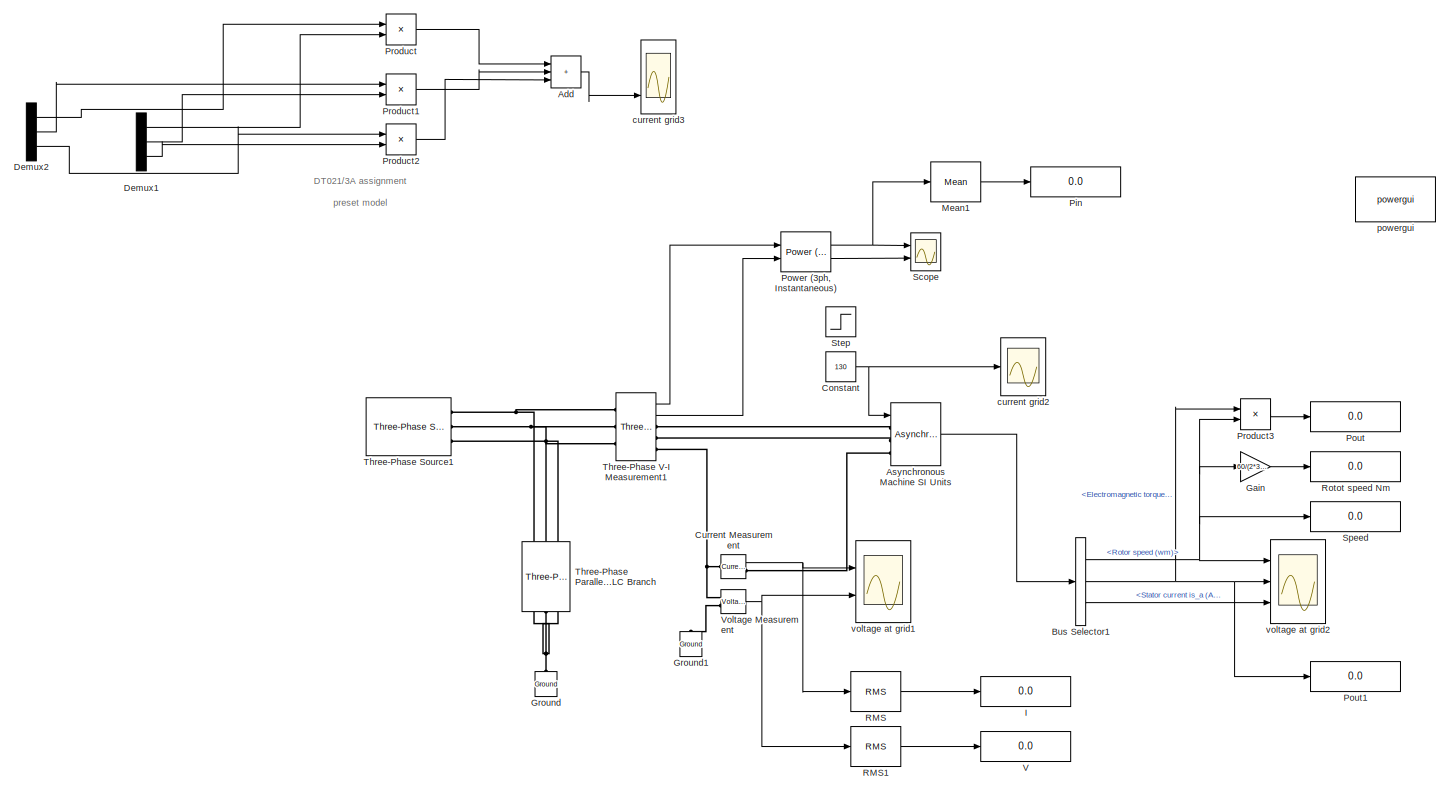
[diagram: root canvas - part 1/1, most of the canvas]
MODEL slx_60de3f6dcb60
KIND model
CONFIG AbsTol = auto
CONFIG EnableMultiTasking = on
CONFIG FixedStep = auto
CONFIG MaxStep = .001
CONFIG MinStep = auto
CONFIG RelTol = 1e-3
CONFIG SampleTimeConstraint = Unconstrained
CONFIG SolverName = ode23tb
CONFIG StartTime = 0
CONFIG StopTime = .8
BLOCK [Scope]  current grid2
  Floating = off
  NumInputPorts = 1
  Ports = [1]
  ScopeSpecificationString = Simulink.scopes.TimeScopeBlockCfg('CurrentConfiguration', extmgr.ConfigurationSet(extmgr.Configuration('Core','General UI',true),extmgr.Configuration('Core','Source UI',true),extmgr.Configuration('Sources','WiredSimulink',true,'DataLoggingVariableName','ScopeData2','DataLoggingSaveFormat','StructureWithTime','DataLoggingDecimation','1','DataLoggingDecimateData',true),extmgr.Configuration('Visuals'...<+1623ch>
BLOCK [Scope]  current grid3
  Floating = off
  NumInputPorts = 3
  Ports = [3]
  ScopeSpecificationString = Simulink.scopes.TimeScopeBlockCfg('CurrentConfiguration', extmgr.ConfigurationSet(extmgr.Configuration('Core','General UI',true),extmgr.Configuration('Core','Source UI',true),extmgr.Configuration('Sources','WiredSimulink',true,'DataLoggingVariableName','ScopeData1','DataLoggingSaveFormat','StructureWithTime','DataLoggingDecimation','1','DataLoggingDecimateData',true),extmgr.Configuration('Visuals'...<+3138ch>
BLOCK [Sum] Add
  IconShape = rectangular
  Inputs = +++
  Ports = [3, 1]
BLOCK [Reference] Asynchronous Machine SI Units  REF=powerlib/Machines/Asynchronous Machine
SI Units
  Ports = [1, 1, 0, 0, 0, 3]
  SourceBlock = powerlib/Machines/Asynchronous Machine\nSI Units
  SourceProductBaseCode = PS
  SourceType = Asynchronous Machine
BLOCK [BusSelector] Bus Selector1
  OutputSignals = Mechanical.Rotor speed (wm),Mechanical.Electromagnetic torque Te (N*m),Stator measurements.Stator current is_a (A)
  Ports = [1, 3]
BLOCK [Constant] Constant
  Value = 130
BLOCK [Reference] Current Measurement  REF=powerlib/Measurements/Current Measurement
  Ports = [0, 1, 0, 0, 0, 1, 1]
  SourceBlock = powerlib/Measurements/Current Measurement
  SourceProductBaseCode = PS
  SourceType = Current Measurement
  UserDataPersistent = on
BLOCK [Demux] Demux1
  Outputs = 3
  Ports = [1, 3]
BLOCK [Demux] Demux2
  Outputs = 3
  Ports = [1, 3]
BLOCK [Gain] Gain
  Gain = 60/(2*3.14159)
BLOCK [Reference] Ground  REF=powerlib/Elements/Ground
  NameLocation = right
  Ports = [0, 0, 0, 0, 0, 1]
  SourceBlock = powerlib/Elements/Ground
  SourceProductBaseCode = PS
  SourceType = Ground
BLOCK [Reference] Ground1  REF=powerlib/Elements/Ground
  NameLocation = right
  Ports = [0, 0, 0, 0, 0, 1]
  SourceBlock = powerlib/Elements/Ground
  SourceProductBaseCode = PS
  SourceType = Ground
BLOCK [Display] I
  Decimation = 1
  Ports = [1]
BLOCK [Reference] Mean1  REF=powerlib_meascontrol/Measurements/Mean
  Ports = [1, 1]
  SourceBlock = powerlib_meascontrol/Measurements/Mean
  SourceProductBaseCode = PS
  SourceType = Mean
BLOCK [Display] Pin
  Decimation = 1
  Ports = [1]
BLOCK [Display] Pout
  Decimation = 1
  Ports = [1]
BLOCK [Display] Pout1
  Decimation = 1
  Ports = [1]
BLOCK [Reference] Power (3ph, Instantaneous)  REF=powerlib_meascontrol/Measurements/Power
(3ph, Instantaneous)
  Ports = [2, 2]
  SourceBlock = powerlib_meascontrol/Measurements/Power\n(3ph, Instantaneous)
  SourceProductBaseCode = PS
  SourceType = Power (3ph, Instantaneous)
BLOCK [Product] Product
  Ports = [2, 1]
BLOCK [Product] Product1
  Ports = [2, 1]
BLOCK [Product] Product2
  Ports = [2, 1]
BLOCK [Product] Product3
  Ports = [2, 1]
BLOCK [Reference] RMS  REF=powerlib_meascontrol/Measurements/RMS
  Ports = [1, 1]
  SourceBlock = powerlib_meascontrol/Measurements/RMS
  SourceProductBaseCode = PS
  SourceType = RMS
BLOCK [Reference] RMS1  REF=powerlib_meascontrol/Measurements/RMS
  Ports = [1, 1]
  SourceBlock = powerlib_meascontrol/Measurements/RMS
  SourceProductBaseCode = PS
  SourceType = RMS
BLOCK [Display] Rotot speed Nm
  Decimation = 1
  Ports = [1]
BLOCK [Scope] Scope
  Floating = off
  NumInputPorts = 2
  Ports = [2]
  ScopeSpecificationString = Simulink.scopes.TimeScopeBlockCfg('CurrentConfiguration', extmgr.ConfigurationSet(extmgr.Configuration('Core','General UI',true),extmgr.Configuration('Core','Source UI',true),extmgr.Configuration('Sources','WiredSimulink',true,'DataLoggingVariableName','ScopeData1'),extmgr.Configuration('Visuals','Time Domain',true,'SerializedDisplays',{struct('MinYLimReal','-1066164.58295','MaxYLimReal','2785580....<+1460ch>
BLOCK [Display] Speed
  Decimation = 1
  Ports = [1]
BLOCK [Step] Step
  After = 25
  Before = 7
  SampleTime = 0
  Time = .3
BLOCK [Reference] Three-Phase Parallel RLC Branch  REF=powerlib/Elements/Three-Phase
Parallel RLC Branch
  AttributesFormatString = \n
  NameLocation = left
  Ports = [0, 0, 0, 0, 0, 3, 3]
  SourceBlock = powerlib/Elements/Three-Phase\nParallel RLC Branch
  SourceProductBaseCode = PS
  SourceType = Three-Phase Parallel RLC Branch
BLOCK [Reference] Three-Phase Source1  REF=powerlib/Electrical
Sources/Three-Phase Source
  Ports = [0, 0, 0, 0, 0, 0, 3]
  SourceBlock = powerlib/Electrical\nSources/Three-Phase Source
  SourceProductBaseCode = PS
  SourceType = Three-Phase Source
BLOCK [Reference] Three-Phase V-I Measurement1  REF=powerlib/Measurements/Three-Phase
V-I Measurement
  Ports = [0, 2, 0, 0, 0, 3, 3]
  SourceBlock = powerlib/Measurements/Three-Phase\nV-I Measurement
  SourceProductBaseCode = PS
  SourceType = Three-Phase VI Measurement
BLOCK [Display] V
  Decimation = 1
  Ports = [1]
BLOCK [Reference] Voltage Measurement  REF=powerlib/Measurements/Voltage Measurement
  Ports = [0, 1, 0, 0, 0, 2]
  SourceBlock = powerlib/Measurements/Voltage Measurement
  SourceProductBaseCode = PS
  SourceType = Voltage Measurement
  UserDataPersistent = on
BLOCK [Reference] powergui  REF=powerlib/powergui
  Ports = []
  Priority = 2
  SourceBlock = powerlib/powergui
  SourceProductBaseCode = PS
  SourceType = PSB option menu block
BLOCK [Scope] voltage at grid1
  Floating = off
  NumInputPorts = 2
  Ports = [2]
  ScopeSpecificationString = Simulink.scopes.TimeScopeBlockCfg('CurrentConfiguration', extmgr.ConfigurationSet(extmgr.Configuration('Core','General UI',true,'FigureColor',[0.729411764705882 0.831372549019608 0.956862745098039]),extmgr.Configuration('Core','Source UI',true),extmgr.Configuration('Sources','WiredSimulink',true,'DataLoggingVariableName','ScopeData3','DataLoggingSaveFormat','StructureWithTime','DataLoggingDecimati...<+2657ch>
BLOCK [Scope] voltage at grid2
  Floating = off
  NumInputPorts = 3
  Ports = [3]
  ScopeSpecificationString = Simulink.scopes.TimeScopeBlockCfg('CurrentConfiguration', extmgr.ConfigurationSet(extmgr.Configuration('Core','General UI',true,'FigureColor',[0.729411764705882 0.831372549019608 0.956862745098039]),extmgr.Configuration('Core','Source UI',true),extmgr.Configuration('Sources','WiredSimulink',true,'DataLoggingVariableName','ScopeData1','DataLoggingSaveFormat','StructureWithTime','DataLoggingDecimati...<+3512ch>
ANNOTATION (root): DT021/3A assignment preset model
LINE Add:1 ->  current grid3:3
LINE Asynchronous Machine SI Units:1 -> Bus Selector1:1
NET Bus Selector1:1 -> Gain:1, Product3:2, Speed:1, voltage at grid2:1
NET Bus Selector1:2 -> Pout1:1, Product3:1, voltage at grid2:2
LINE Bus Selector1:3 -> voltage at grid2:3
NET Constant:1 ->  current grid2:1, Asynchronous Machine SI Units:1
NET Current Measurement:1 -> RMS:1, voltage at grid1:1
LINE Demux1:1 -> Product:2
LINE Demux1:2 -> Product1:2
LINE Demux1:3 -> Product2:2
LINE Demux2:1 -> Product:1
LINE Demux2:2 -> Product1:1
LINE Demux2:3 -> Product2:1
LINE Gain:1 -> Rotot speed Nm:1
LINE Mean1:1 -> Pin:1
NET Power (3ph, Instantaneous):1 -> Mean1:1, Scope:1
LINE Power (3ph, Instantaneous):2 -> Scope:2
LINE Product1:1 -> Add:2
LINE Product2:1 -> Add:3
LINE Product3:1 -> Pout:1
LINE Product:1 -> Add:1
LINE RMS1:1 -> V:1
LINE RMS:1 -> I:1
LINE Three-Phase V-I Measurement1:1 -> Power (3ph, Instantaneous):1
LINE Three-Phase V-I Measurement1:2 -> Power (3ph, Instantaneous):2
NET Voltage Measurement:1 -> RMS1:1, voltage at grid1:2
PLINE Asynchronous Machine SI Units:LConn1 -- Three-Phase V-I Measurement1:RConn1
PLINE Asynchronous Machine SI Units:LConn2 -- Three-Phase V-I Measurement1:RConn2
PLINE Asynchronous Machine SI Units:LConn3 -- Current Measurement:RConn1
PNET net1: Current Measurement:LConn1 -- Three-Phase V-I Measurement1:RConn3 -- Voltage Measurement:LConn1
PLINE Ground1:LConn1 -- Voltage Measurement:LConn2
PNET net2: Ground:LConn1 -- Three-Phase Parallel RLC Branch:RConn1 -- Three-Phase Parallel RLC Branch:RConn2 -- Three-Phase Parallel RLC Branch:RConn3
PNET net3: Three-Phase Parallel RLC Branch:LConn1 -- Three-Phase Source1:RConn1 -- Three-Phase V-I Measurement1:LConn1
PNET net4: Three-Phase Parallel RLC Branch:LConn2 -- Three-Phase Source1:RConn2 -- Three-Phase V-I Measurement1:LConn2
PNET net5: Three-Phase Parallel RLC Branch:LConn3 -- Three-Phase Source1:RConn3 -- Three-Phase V-I Measurement1:LConn3
note: NET lines group one-source signal fan-out (src -> all destinations, sorted); 1:1 wires keep LINE; PNET lines group multi-terminal physical nets as a canonical sorted terminal list (undirected conserving connections); 2-terminal nets keep the pairwise PLINE form
